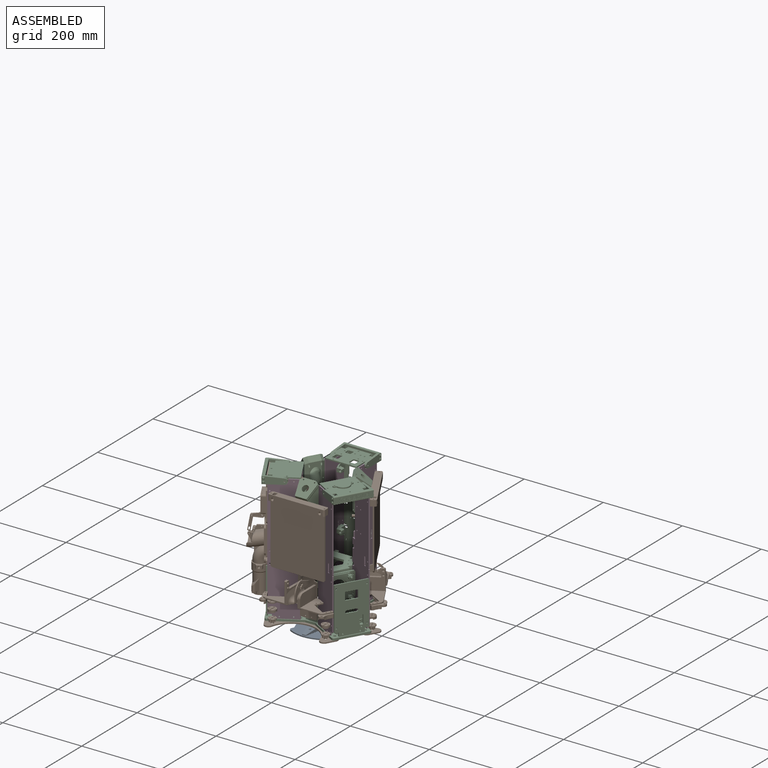
[diagram: assembled view]
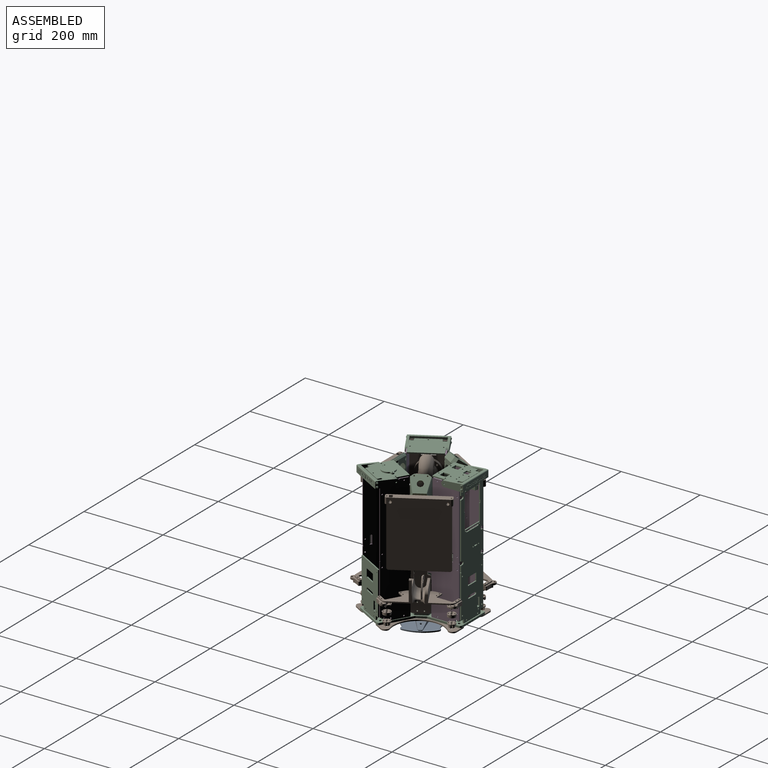
[diagram: assembled view, second angle]
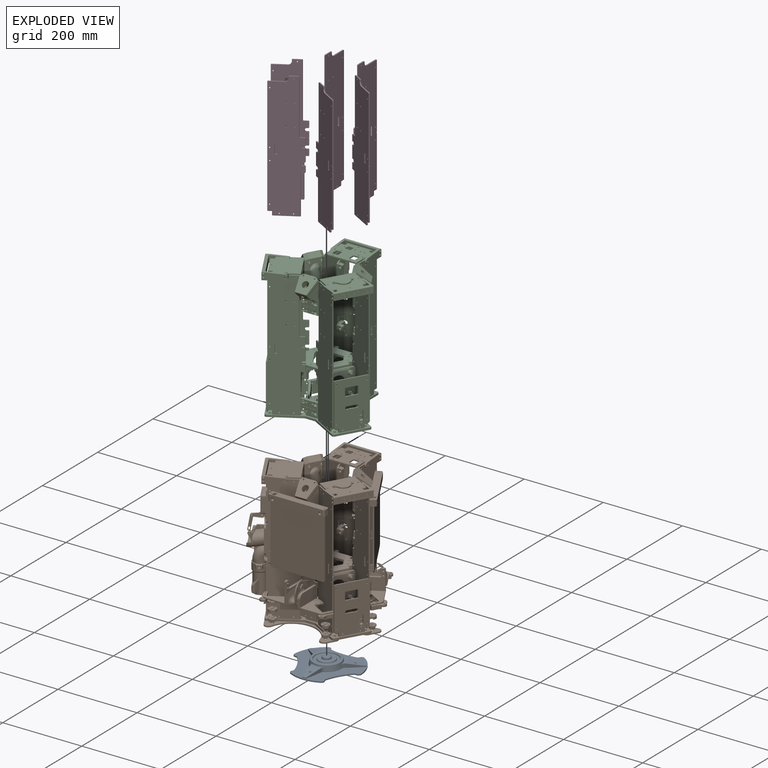
[diagram: exploded view]
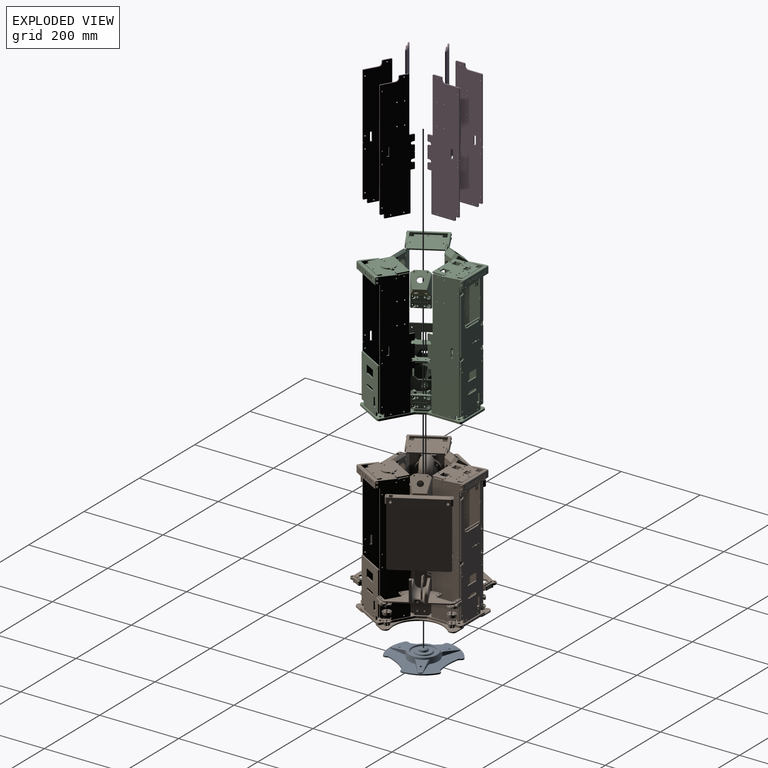
[diagram: exploded view, second angle]
FCSTD DOCUMENT  (FreeCAD 2023.131R26244 +5365 (Git))
Label: robots_2023
License: Creative Commons Attribution-NoDerivatives
LicenseURL: http://creativecommons.org/licenses/by-nd/4.0/
objects: App::Link×21, Part::Feature×11, App::Part×6, App::DocumentObjectGroup×3, Part::SubShapeBinder×1, Sketcher::SketchObject×1
note: 14 computed .brp shape members not serialized (recipe doc carries the construction recipe); baked Part::Feature solids carry a one-line shape summary decoded from their .brp
EXTERNAL_REF file=robot_holonome.FCStd obj=Part
EXTERNAL_REF file=mechanical-parts/colonne-moteur.FCStd obj=Body
EXTERNAL_REF file=mechanical-parts/colonne-moteur.FCStd obj=Body073
EXTERNAL_REF file=mechanical-parts/actuator.FCStd obj=Assembly
EXTERNAL_REF file=mechanical-parts/ball-actuator.FCStd obj=BallActionneur
EXTERNAL_REF file=mechanical-parts/structures.FCStd obj=Part013

FEATURE [App::Link] Link  label="RobotHolonome01"
  AutoLinkLabel = true
  AutoPlacement = true
  LinkedObject = -> <external robot_holonome.FCStd>#Part
  ShowElement = false
  SyncGroupVisibility = false
  TreeRank = 1
  _LinkVersion = 1
FEATURE [App::Link] Link001  label="RobotHolonome02"
  AutoLinkLabel = true
  AutoPlacement = true
  LinkedObject = -> <external robot_holonome.FCStd>#Part
  ShowElement = false
  SyncGroupVisibility = false
  TreeRank = 8
  _LinkVersion = 1
FEATURE [App::DocumentObjectGroup] Group003  label="Actionneurs02"
  ClaimAllChildren = true
  ExportMode = 1
  TreeRank = 12
  _GroupVersion = 1
FEATURE [App::Link] Link002  label="CarterSup"
  AutoLinkLabel = true
  AutoPlacement = true
  LinkPlacement = pos=(0,45,0) rot=(0,0,1;0rad)
  LinkedObject = -> <external mechanical-parts/colonne-moteur.FCStd>#Body
  Placement = pos=(0,45,0) rot=(0,0,1;0rad)
  ShowElement = false
  SyncGroupVisibility = false
  TreeRank = 21
  _LinkVersion = 1
FEATURE [App::Link] Link003  label="CarterSup001"
  AutoLinkLabel = true
  AutoPlacement = true
  LinkPlacement = pos=(38.9711,-22.5,0) rot=(0,0,1;4.18879rad)
  LinkedObject = -> <external mechanical-parts/colonne-moteur.FCStd>#Body
  Placement = pos=(38.9711,-22.5,0) rot=(0,0,1;4.18879rad)
  ShowElement = false
  SyncGroupVisibility = false
  TreeRank = 22
  _LinkVersion = 1
FEATURE [App::Link] Link004  label="CarterSup002"
  AutoLinkLabel = true
  AutoPlacement = true
  LinkPlacement = pos=(80.4712,49.3801,0) rot=(0,0,1;4.18879rad)
  LinkedObject = -> <external mechanical-parts/colonne-moteur.FCStd>#Body
  Placement = pos=(80.4712,49.3801,0) rot=(0,0,1;4.18879rad)
  ShowElement = false
  SyncGroupVisibility = false
  TreeRank = 23
  _LinkVersion = 1
FEATURE [App::Link] Link005  label="CarterSup003"
  AutoLinkLabel = true
  AutoPlacement = true
  LinkPlacement = pos=(2.52885,-94.3801,0) rot=(0,0,1;2.0944rad)
  LinkedObject = -> <external mechanical-parts/colonne-moteur.FCStd>#Body
  Placement = pos=(2.52885,-94.3801,0) rot=(0,0,1;2.0944rad)
  ShowElement = false
  SyncGroupVisibility = false
  TreeRank = 24
  _LinkVersion = 1
FEATURE [App::Link] Link006  label="CarterInf"
  AutoLinkLabel = true
  AutoPlacement = true
  LinkPlacement = pos=(0,45,0) rot=(0,0,1;0rad)
  LinkedObject = -> <external mechanical-parts/colonne-moteur.FCStd>#Body073
  Placement = pos=(0,45,0) rot=(0,0,1;0rad)
  ShowElement = false
  SyncGroupVisibility = false
  TreeRank = 27
  _LinkVersion = 1
FEATURE [App::Link] Link007  label="CarterInf001"
  AutoLinkLabel = true
  AutoPlacement = true
  LinkPlacement = pos=(38.9711,-22.5,0) rot=(0,0,1;4.18879rad)
  LinkedObject = -> <external mechanical-parts/colonne-moteur.FCStd>#Body073
  Placement = pos=(38.9711,-22.5,0) rot=(0,0,1;4.18879rad)
  ShowElement = false
  SyncGroupVisibility = false
  TreeRank = 28
  _LinkVersion = 1
FEATURE [App::Link] Link008  label="CarterInf002"
  AutoLinkLabel = true
  AutoPlacement = true
  LinkPlacement = pos=(2.52887,-94.3801,0) rot=(0,0,1;2.0944rad)
  LinkedObject = -> <external mechanical-parts/colonne-moteur.FCStd>#Body073
  Placement = pos=(2.52887,-94.3801,0) rot=(0,0,1;2.0944rad)
  ShowElement = false
  SyncGroupVisibility = false
  TreeRank = 29
  _LinkVersion = 1
FEATURE [App::Link] Link009  label="CarterInf003"
  AutoLinkLabel = true
  AutoPlacement = true
  LinkPlacement = pos=(80.4712,49.3801,0) rot=(0,0,1;4.18879rad)
  LinkedObject = -> <external mechanical-parts/colonne-moteur.FCStd>#Body073
  Placement = pos=(80.4712,49.3801,0) rot=(0,0,1;4.18879rad)
  ShowElement = false
  SyncGroupVisibility = false
  TreeRank = 30
  _LinkVersion = 1
FEATURE [App::Link] Link010  label="CarterInf004"
  AutoLinkLabel = true
  AutoPlacement = true
  LinkPlacement = pos=(-38.9711,-22.5,4.76834e-07) rot=(0,0,1;2.0944rad)
  LinkedObject = -> Link008
  Placement = pos=(-38.9711,-22.5,4.76834e-07) rot=(0,0,1;2.0944rad)
  ShowElement = false
  SyncGroupVisibility = false
  TreeRank = 31
  _LinkVersion = 1
FEATURE [App::Link] Link011  label="CarterInf005"
  AutoLinkLabel = true
  AutoPlacement = true
  LinkPlacement = pos=(-83,45,1.42966e-05) rot=(0,0,1;0rad)
  LinkedObject = -> Link006
  Placement = pos=(-83,45,1.42966e-05) rot=(0,0,1;0rad)
  ShowElement = false
  SyncGroupVisibility = false
  TreeRank = 32
  _LinkVersion = 1
FEATURE [App::Link] Link012  label="CarterSup004"
  AutoLinkLabel = true
  AutoPlacement = true
  LinkPlacement = pos=(-38.9711,-22.5,4.76833e-07) rot=(0,0,1;2.0944rad)
  LinkedObject = -> Link005
  Placement = pos=(-38.9711,-22.5,4.76833e-07) rot=(0,0,1;2.0944rad)
  ShowElement = false
  SyncGroupVisibility = false
  TreeRank = 25
  _LinkVersion = 1
FEATURE [App::Link] Link013  label="CarterSup005"
  AutoLinkLabel = true
  AutoPlacement = true
  LinkPlacement = pos=(-83,45,1.42966e-05) rot=(0,0,1;0rad)
  LinkedObject = -> Link002
  Placement = pos=(-83,45,1.42966e-05) rot=(0,0,1;0rad)
  ShowElement = false
  SyncGroupVisibility = false
  TreeRank = 26
  _LinkVersion = 1
FEATURE [App::Part] Part002  label="Carters"
  ClaimAllChildren = false
  ExportMode = 1
  Group = -> [Link002,Link003,Link004,Link005,Link012,Link013,Link006,Link007,Link008,Link009,Link010,Link011]
  Origin = -> Origin002
  TreeRank = 35
  _ExportChildren = -> [Link002,Link003,Link004,Link005,Link012,Link013,Link006,Link007,Link008,Link009,Link010,Link011]
  _GroupVersion = 1
FEATURE [App::DocumentObjectGroup] Group005  label="Parts"
  ClaimAllChildren = true
  ExportMode = 1
  Group = -> [Part002]
  TreeRank = 37
  _GroupVersion = 1
FEATURE [App::Link] Link014  label="Carters01"
  AutoLinkLabel = true
  AutoPlacement = true
  LinkedObject = -> Part002
  ShowElement = false
  SyncGroupVisibility = false
  TreeRank = 38
  _LinkVersion = 1
FEATURE [App::Link] Link015  label="Carters02"
  AutoLinkLabel = true
  AutoPlacement = true
  LinkedObject = -> Part002
  ShowElement = false
  SyncGroupVisibility = false
  TreeRank = 39
  _LinkVersion = 1
FEATURE [App::Part] Part001  label="Dary"
  ClaimAllChildren = false
  ExportMode = 1
  Group = -> [Link001,Group003,Link015]
  Origin = -> Origin001
  TreeRank = 7
  _ExportChildren = -> [Link001,Group003,Link015]
  _GroupVersion = 1
FEATURE [App::Link] Link016  label="Link016(AssembledActuator)"
  AutoLinkLabel = true
  AutoPlacement = true
  LinkedObject = -> <external mechanical-parts/actuator.FCStd>#Assembly
  ShowElement = false
  SyncGroupVisibility = false
  TreeRank = 40
  _LinkVersion = 1
FEATURE [App::Link] Link018  label="Link018(*AssembledActuator)"
  AutoLinkLabel = true
  AutoPlacement = true
  LinkPlacement = pos=(0,0,0) rot=(0,0,1;4.18879rad)
  LinkedObject = -> Link016
  Placement = pos=(0,0,0) rot=(0,0,1;4.18879rad)
  ShowElement = false
  SyncGroupVisibility = false
  TreeRank = 66
  _LinkVersion = 1
FEATURE [App::Link] Link019  label="Link019(*AssembledActuator)"
  AutoLinkLabel = true
  AutoPlacement = true
  LinkPlacement = pos=(0,0,0) rot=(0,0,1;2.0944rad)
  LinkedObject = -> Link016
  Placement = pos=(0,0,0) rot=(0,0,1;2.0944rad)
  ShowElement = false
  SyncGroupVisibility = false
  TreeRank = 67
  _LinkVersion = 1
FEATURE [Part::Feature] Part__Feature  label="CarterVac"
  InvalidShape = false
  TreeRank = 91
  ValidateShape = true
  shape: bbox 80 x 3 x 200 mm, 74 faces (baked)
FEATURE [Part::Feature] Part__Feature001  label="TubeInterne"
  InvalidShape = false
  TreeRank = 92
  ValidateShape = true
  shape: bbox 61.94 x 98.3 x 192.5 mm, 124 faces (baked)
FEATURE [Part::Feature] Part__Feature002  label="TubeExterne"
  InvalidShape = false
  TreeRank = 93
  ValidateShape = true
  shape: bbox 60.03 x 49.48 x 124.4 mm, 102 faces (baked)
FEATURE [Part::Feature] Part__Feature003  label="TubeEntree"
  InvalidShape = false
  TreeRank = 94
  ValidateShape = true
  shape: bbox 46.24 x 35.58 x 86.23 mm, 62 faces (baked)
FEATURE [Part::Feature] Part__Feature004  label="SpacerTurbine"
  InvalidShape = false
  TreeRank = 95
  ValidateShape = true
  shape: bbox 45 x 10 x 45 mm, 41 faces (baked)
FEATURE [Part::Feature] Part__Feature005  label="CacheTurbine"
  InvalidShape = false
  TreeRank = 96
  ValidateShape = true
  shape: bbox 45 x 3 x 45 mm, 30 faces (baked)
FEATURE [Part::Feature] Part__Feature006  label="LamelleTurbine"
  InvalidShape = false
  TreeRank = 97
  ValidateShape = true
  shape: bbox 50 x 4.8 x 2.1 mm, 10 faces (baked)
FEATURE [Part::Feature] Part__Feature007  label="Trappe"
  InvalidShape = false
  Placement = pos=(0,28.35,194.28) rot=(0,0,1;0rad)
  TreeRank = 98
  ValidateShape = true
  shape: bbox 60.05 x 16.85 x 35.16 mm, 48 faces (baked)
FEATURE [Part::Feature] Part__Feature008  label="ServoArm"
  InvalidShape = false
  TreeRank = 99
  ValidateShape = true
  shape: bbox 4 x 21.5 x 6.9 mm, 11 faces (baked)
FEATURE [Part::Feature] Part__Feature009  label="BigServoArm"
  InvalidShape = false
  TreeRank = 100
  ValidateShape = true
  shape: bbox 4 x 30.59 x 10.9 mm, 28 faces (baked)
FEATURE [Part::Feature] Part__Feature010  label="ArmLink"
  InvalidShape = false
  Placement = pos=(5.3e-15,21.65,6.0174e-12) rot=(-1,0,0;1.39626rad)
  TreeRank = 101
  ValidateShape = true
  shape: bbox 3 x 12.56 x 38.51 mm, 11 faces (baked)
FEATURE [App::Part] EnsembleServoArm
  ClaimAllChildren = false
  ExportMode = 1
  Group = -> [Part__Feature008,Part__Feature009,Part__Feature010]
  Origin = -> Origin003
  Placement = pos=(15.7,12.1227,220.996) rot=(0,0,1;0rad)
  TreeRank = 103
  _ExportChildren = -> [Part__Feature008,Part__Feature009,Part__Feature010]
  _GroupVersion = 1
FEATURE [App::Part] EnsembleServo
  ClaimAllChildren = false
  ExportMode = 1
  Group = -> [EnsembleServoArm]
  Origin = -> Origin004
  Placement = pos=(-7.4,-2.86102e-07,-2.84e-14) rot=(0,0,1;0rad)
  TreeRank = 105
  _ExportChildren = -> [EnsembleServoArm]
  _GroupVersion = 1
FEATURE [App::Part] BallActionneur
  ClaimAllChildren = false
  ExportMode = 1
  Group = -> [Part__Feature,Part__Feature001,Part__Feature002,Part__Feature003,Part__Feature004,Part__Feature005,Part__Feature006,Part__Feature007,EnsembleServo]
  Origin = -> Origin005
  Placement = pos=(-106.521,-61.5,-10) rot=(0,0,1;2.0944rad)
  TreeRank = 107
  _ExportChildren = -> [Part__Feature,Part__Feature001,Part__Feature002,Part__Feature003,Part__Feature004,Part__Feature005,Part__Feature006,Part__Feature007,EnsembleServo]
  _GroupVersion = 1
FEATURE [Part::SubShapeBinder] Import  label="Import(Fillet008)"
  BindCopyOnChange = 0
  BindMode = 0
  ClaimChildren = false
  EdgeTolerance = 1e-06
  FillStyle = 0
  Fuse = false
  InvalidShape = false
  MakeFace = false
  MergeEdges = true
  OffsetFill = false
  OffsetIntersection = false
  OffsetJoinType = 0
  OffsetOpenResult = false
  Outline = false
  PartialLoad = false
  Relative = true
  SplitEdges = false
  Support = -> [Part[Link016.Part003.Part004.Body044.Fillet008.]]
  TightBound = false
  TreeRank = 133
  ValidateShape = true
  _Version = 8
FEATURE [Sketcher::SketchObject] Sketch
  ArcFitTolerance = 1e-06
  ExternalBSplineMaxDegree = 5
  ExternalBSplineTolerance = 0.0001
  ExternalGeometry = -> [Import]
  FullyConstrained = false
  InternalTolerance = 1e-06
  InvalidShape = false
  MakeInternals = true
  TreeRank = 132
  ValidateShape = true
  sketch-geometry (4):
    g0: LineSegment StartX=0 StartY=-134.06 StartZ=0 EndX=-90.6094 EndY=-134.06 EndZ=0
    g1: LineSegment StartX=-86.0526 StartY=136.28 StartZ=0 EndX=102.499 EndY=136.28 EndZ=0
    g2: LineSegment StartX=-154.715 StartY=-46.0465 StartZ=0 EndX=-98.0532 EndY=-144.187 EndZ=0
    g3: LineSegment StartX=-135.975 StartY=-78.505 StartZ=0 EndX=2.274e-13 EndY=1.705e-13 EndZ=0
  constraints (11):
    c: PointOnObject(g0,g-2)
    c: Horizontal(g0)
    c: Horizontal(g1)
    c: DistanceY(g1) = 136.28
    c: DistanceY(g0) = -134.06
    c: DistanceY(g-3,g-1) = 124.49
    c: Angle(g2,g-1) = 1.0472
    c: PointOnObject(g3,g2)
    c: Coincident(g3,g-1)
    c: Perpendicular(g2,g3)
    c: Distance(g3) = 157.01
FEATURE [App::Link] Link020  label="BallActionneur001"
  AutoLinkLabel = true
  AutoPlacement = true
  LinkPlacement = pos=(-106.521,-61.5,-10) rot=(0,0,1;2.0944rad)
  LinkedObject = -> <external mechanical-parts/ball-actuator.FCStd>#BallActionneur
  Placement = pos=(-106.521,-61.5,-10) rot=(0,0,1;2.0944rad)
  SyncGroupVisibility = false
  TreeRank = 134
  _LinkVersion = 1
FEATURE [App::DocumentObjectGroup] Group002  label="Actionneurs01"
  ClaimAllChildren = true
  ExportMode = 1
  Group = -> [Link016,Link018,Link019,BallActionneur,Link020]
  TreeRank = 11
  _GroupVersion = 1
FEATURE [App::Part] Part  label="Mary"
  ClaimAllChildren = false
  ExportMode = 1
  Group = -> [Link,Group002,Link014,Link016,Link018,Link019,BallActionneur,Link020]
  Origin = -> Origin
  TreeRank = 4
  _ExportChildren = -> [Link,Group002,Link014]
  _GroupVersion = 1
FEATURE [App::Link] Link021  label="RobotStand"
  AutoLinkLabel = true
  AutoPlacement = true
  LinkPlacement = pos=(0,1.19209e-06,-2) rot=(1,0,0;3.14159rad)
  LinkedObject = -> <external mechanical-parts/structures.FCStd>#Part013
  Placement = pos=(0,1.19209e-06,-2) rot=(1,0,0;3.14159rad)
  SyncGroupVisibility = false
  TreeRank = 135
  _LinkVersion = 1

RESOLVED EXTERNAL PARTS (link-assembly join: the EXTERNAL_REF files above that resolve inside this repo's crawl, each included once):
---- part mechanical-parts/actuator.FCStd = doc fcstd_988ee5c55d43 (154555 chars; too large to inline — full recipe in that document) ----
---- part mechanical-parts/ball-actuator.FCStd = doc fcstd_b463ab52f73f ----
FCSTD DOCUMENT  (FreeCAD 2023.131R26244 +5365 (Git))
Label: ball-actuator
License: Creative Commons Attribution-NoDerivatives
LicenseURL: http://creativecommons.org/licenses/by-nd/4.0/
objects: Part::Feature×11, PartDesign::Chamfer×6, Sketcher::SketchObject×5, App::Part×3, PartDesign::Pocket×3, PartDesign::Draft×3, PartDesign::Pad×2, PartDesign::Fillet×2, PartDesign::SubShapeBinder×1, PartDesign::Mirrored×1, PartDesign::Body×1
note: 74 computed .brp shape members not serialized (recipe doc carries the construction recipe); baked Part::Feature solids carry a one-line shape summary decoded from their .brp

FEATURE [Part::Feature] Part__Feature  label="CarterVac"
  InvalidShape = false
  TreeRank = 91
  ValidateShape = true
  shape: bbox 80 x 3 x 200 mm, 74 faces (baked)
FEATURE [Part::Feature] Part__Feature001  label="TubeInterne"
  InvalidShape = false
  TreeRank = 92
  ValidateShape = true
  shape: bbox 61.94 x 98.3 x 192.5 mm, 124 faces (baked)
FEATURE [Part::Feature] Part__Feature002  label="TubeExterne"
  InvalidShape = false
  TreeRank = 93
  ValidateShape = true
  shape: bbox 60.03 x 49.48 x 124.4 mm, 102 faces (baked)
FEATURE [Part::Feature] Part__Feature003  label="TubeEntree"
  InvalidShape = false
  TreeRank = 94
  ValidateShape = true
  shape: bbox 46.24 x 35.58 x 86.23 mm, 62 faces (baked)
FEATURE [Part::Feature] Part__Feature004  label="SpacerTurbine"
  InvalidShape = false
  TreeRank = 95
  ValidateShape = true
  shape: bbox 45 x 10 x 45 mm, 41 faces (baked)
FEATURE [Part::Feature] Part__Feature005  label="CacheTurbine"
  InvalidShape = false
  TreeRank = 96
  ValidateShape = true
  shape: bbox 45 x 3 x 45 mm, 30 faces (baked)
FEATURE [Part::Feature] Part__Feature006  label="LamelleTurbine"
  InvalidShape = false
  TreeRank = 97
  ValidateShape = true
  shape: bbox 50 x 4.8 x 2.1 mm, 10 faces (baked)
FEATURE [Part::Feature] Part__Feature007  label="Trappe"
  InvalidShape = false
  Placement = pos=(0,28.35,194.28) rot=(0,0,1;0rad)
  TreeRank = 98
  ValidateShape = true
  shape: bbox 60.05 x 16.85 x 35.16 mm, 48 faces (baked)
FEATURE [Part::Feature] Part__Feature008  label="ServoArm"
  InvalidShape = false
  TreeRank = 99
  ValidateShape = true
  shape: bbox 4 x 21.5 x 6.9 mm, 11 faces (baked)
FEATURE [Part::Feature] Part__Feature009  label="BigServoArm"
  InvalidShape = false
  TreeRank = 100
  ValidateShape = true
  shape: bbox 4 x 30.59 x 10.9 mm, 28 faces (baked)
FEATURE [Part::Feature] Part__Feature010  label="ArmLink"
  InvalidShape = false
  Placement = pos=(5.3e-15,21.65,6.0174e-12) rot=(-1,0,0;1.39626rad)
  TreeRank = 101
  ValidateShape = true
  shape: bbox 3 x 12.56 x 38.51 mm, 11 faces (baked)
FEATURE [App::Part] EnsembleServoArm
  ClaimAllChildren = false
  ExportMode = 1
  Group = -> [Part__Feature008,Part__Feature009,Part__Feature010]
  Origin = -> Origin003
  Placement = pos=(15.7,12.1227,220.996) rot=(0,0,1;0rad)
  TreeRank = 103
  _ExportChildren = -> [Part__Feature008,Part__Feature009,Part__Feature010]
  _GroupVersion = 1
FEATURE [App::Part] EnsembleServo
  ClaimAllChildren = false
  ExportMode = 1
  Group = -> [EnsembleServoArm]
  Origin = -> Origin004
  Placement = pos=(-7.4,-2.86102e-07,-2.84e-14) rot=(0,0,1;0rad)
  TreeRank = 105
  _ExportChildren = -> [EnsembleServoArm]
  _GroupVersion = 1
FEATURE [PartDesign::SubShapeBinder] BaseFeature  label="BaseFeature(TubeEntree)"
  BindCopyOnChange = 0
  BindMode = 0
  ClaimChildren = false
  Context = -> BallActionneur [Body.BaseFeature.]
  EdgeTolerance = 1e-06
  FillStyle = 0
  Fuse = true
  InvalidShape = false
  MakeFace = true
  MergeEdges = true
  OffsetFill = false
  OffsetIntersection = false
  OffsetJoinType = 0
  OffsetOpenResult = false
  Outline = false
  PartialLoad = false
  Relative = true
  SplitEdges = false
  Support = -> [Part__Feature003]
  TightBound = false
  TreeRank = 143
  ValidateShape = true
  _Version = 8
FEATURE [Sketcher::SketchObject] Sketch
  ArcFitTolerance = 1e-06
  AttachmentSupport = -> [YZ_Plane]
  ExternalBSplineMaxDegree = 5
  ExternalBSplineTolerance = 0.0001
  ExternalGeometry = -> [BaseFeature]
  FullyConstrained = true
  InternalTolerance = 1e-06
  InvalidShape = false
  MakeInternals = true
  MapMode = 5
  Placement = pos=(0,0,0) rot=(0.57735,0.57735,0.57735;2.0944rad)
  Support = -> [YZ_Plane]
  TreeRank = 144
  ValidateShape = true
  sketch-geometry (8):
    g0: LineSegment [constr] StartX=-1.4508e-12 StartY=52.5 StartZ=0 EndX=33 EndY=52.5 EndZ=0
    g1: LineSegment StartX=33 StartY=52.5 StartZ=0 EndX=33 EndY=22.5 EndZ=0
    g2: LineSegment StartX=33 StartY=22.5 StartZ=0 EndX=-1.4495e-12 EndY=22.5 EndZ=0
    g3: LineSegment [constr] StartX=-1.4508e-12 StartY=22.5 StartZ=0 EndX=-1.4508e-12 EndY=52.5 EndZ=0
    g4: LineSegment StartX=33 StartY=52.5 StartZ=0 EndX=19 EndY=52.5 EndZ=0
    g5: ArcOfCircle CenterX=19 CenterY=36 CenterZ=0 NormalX=0 NormalY=0 NormalZ=1 AngleXU=0 Radius=16.5 StartAngle=1.5708 EndAngle=3.14159
    g6: LineSegment StartX=2.5 StartY=36 StartZ=0 EndX=8.966e-13 EndY=36 EndZ=0
    g7: LineSegment StartX=8.966e-13 StartY=36 StartZ=0 EndX=-1.4508e-12 EndY=22.5 EndZ=0
  constraints (22):
    c: Coincident(g0,g1)
    c: Coincident(g1,g2)
    c: Coincident(g2,g3)
    c: Coincident(g3,g0)
    c: Horizontal(g0)
    c: Horizontal(g2)
    c: Vertical(g1)
    c: Vertical(g3)
    c: PointOnObject(g0,g-2)
    c: DistanceY(g-1,g0) = 52.5
    c: DistanceX(g1) = 33
    c: DistanceY(g1,g1) = 30
    c: Coincident(g4,g1)
    c: PointOnObject(g4,g0)
    c: Tangent(g5,g4) = -1.5708
    c: Coincident(g6,g5)
    c: PointOnObject(g6,g3)
    c: Coincident(g7,g6)
    c: Coincident(g7,g2)
    c: Horizontal(g6)
    c: Perpendicular(g5,g6)
    c: Coincident(g-3,g5)
FEATURE [PartDesign::Pocket] Pocket
  AddSubType = 1
  AutoTaperInnerAngle = true
  BaseFeature = -> BaseFeature
  CheckUpToFaceLimits = true
  ClaimChildren = false
  Fit = 0
  FitJoin = 0
  InnerFit = 0
  InnerFitJoin = 0
  InvalidShape = false
  Length = 5
  Length2 = 100
  Linearize = true
  Midplane = true
  NewSolid = false
  Profile = -> Sketch
  Refine = true
  Suppress = false
  TaperInnerAngle = 0
  TaperInnerAngleRev = 0
  TreeRank = 145
  Type = 1
  ValidateShape = true
  _ProfileBasedVersion = 1
  _Version = 1
FEATURE [Sketcher::SketchObject] Sketch001
  ArcFitTolerance = 1e-06
  AttachmentSupport = -> [Pocket]
  ExternalBSplineMaxDegree = 5
  ExternalBSplineTolerance = 0.0001
  ExternalGeometry = -> [Pocket]
  FullyConstrained = true
  InternalTolerance = 1e-06
  InvalidShape = false
  MakeInternals = true
  MapMode = 5
  Placement = pos=(-1.46e-14,-4.4648e-12,52.5) rot=(1,0,0;3.14159rad)
  Support = -> [Pocket]
  TreeRank = 146
  ValidateShape = true
  sketch-geometry (8):
    g0: LineSegment StartX=-15 StartY=-16 StartZ=0 EndX=-16 EndY=-16 EndZ=0
    g1: LineSegment StartX=-16 StartY=-16 StartZ=0 EndX=-16 EndY=-32 EndZ=0
    g2: LineSegment StartX=-16 StartY=-32 StartZ=0 EndX=16 EndY=-32 EndZ=0
    g3: LineSegment StartX=16 StartY=-32 StartZ=0 EndX=16 EndY=-16 EndZ=0
    g4: ArcOfCircle CenterX=4.3402e-12 CenterY=-16 CenterZ=0 NormalX=0 NormalY=0 NormalZ=1 AngleXU=0 Radius=14 StartAngle=3.14159 EndAngle=6.28319
    g5: LineSegment StartX=14 StartY=-16 StartZ=0 EndX=16 EndY=-16 EndZ=0
    g6: LineSegment StartX=-15 StartY=-16 StartZ=0 EndX=-14 EndY=-16 EndZ=0
    g7: GeomPoint [constr] X=0 Y=-31.5 Z=0
  constraints (22):
    c: Horizontal(g0)
    c: Coincident(g1,g0)
    c: Vertical(g1)
    c: Coincident(g2,g1)
    c: Horizontal(g2)
    c: Coincident(g3,g2)
    c: Vertical(g3)
    c: Symmetric(g3,g0,g-2)
    c: Coincident(g5,g4)
    c: Horizontal(g5)
    c: Coincident(g6,g0)
    c: Coincident(g6,g4)
    c: Horizontal(g6)
    c: DistanceX(g6,g6) = 1
    c: Coincident(g5,g3)
    c: PointOnObject(g7,g-2)
    c: DistanceY(g2,g7) = 0.5
    c: Horizontal(g4,g4)
    c: PointOnObject(g7,g-3)
    c: Coincident(g-3,g4)
    c: DistanceX(g5,g5) = 2
    c: DistanceX(g0,g3) = 32
FEATURE [PartDesign::Pad] Pad
  AddSubType = 0
  AlongSketchNormal = false
  AutoTaperInnerAngle = true
  BaseFeature = -> Pocket
  CheckUpToFaceLimits = true
  ClaimChildren = false
  Direction = (3e-16,8.5e-14,-1)
  Fit = 0
  FitJoin = 0
  InnerFit = 0
  InnerFitJoin = 0
  InvalidShape = false
  Length = 20
  Length2 = 100
  Linearize = true
  NewSolid = false
  Profile = -> Sketch001
  Refine = true
  Reversed = true
  Suppress = false
  TaperInnerAngle = 0
  TaperInnerAngleRev = 0
  TreeRank = 147
  Type = 0
  ValidateShape = true
  _ProfileBasedVersion = 1
FEATURE [PartDesign::Draft] Draft
  AddSubType = 0
  Angle = 45
  Base = -> Pad [Face63]
  BaseFeature = -> Pad
  InvalidShape = false
  NeutralPlane = -> Pad [Face69]
  NewSolid = false
  Refine = true
  SupportTransform = false
  Suppress = false
  TreeRank = 148
  ValidateShape = true
FEATURE [PartDesign::Draft] Draft001
  AddSubType = 0
  Angle = 45
  Base = -> Draft [Face70]
  BaseFeature = -> Draft
  InvalidShape = false
  NeutralPlane = -> Draft [Face64]
  NewSolid = false
  Refine = true
  Reversed = true
  SupportTransform = false
  Suppress = false
  TreeRank = 149
  ValidateShape = true
FEATURE [PartDesign::Draft] Draft002
  AddSubType = 0
  Angle = 45
  Base = -> Draft001 [Face68]
  BaseFeature = -> Draft001
  InvalidShape = false
  NeutralPlane = -> Draft001 [Face62]
  NewSolid = false
  Refine = true
  SupportTransform = false
  Suppress = false
  TreeRank = 150
  ValidateShape = true
FEATURE [PartDesign::Fillet] Fillet
  AddSubType = 0
  Base = -> Draft002 [Edge183,Edge182]
  BaseFeature = -> Draft002
  InvalidShape = false
  NewSolid = false
  Radius = 5
  Refine = true
  SupportTransform = false
  Suppress = false
  TreeRank = 151
  ValidateShape = true
FEATURE [Sketcher::SketchObject] Sketch002
  ArcFitTolerance = 1e-06
  AttachmentSupport = -> [Fillet]
  ExternalBSplineMaxDegree = 5
  ExternalBSplineTolerance = 0.0001
  FullyConstrained = false
  InternalTolerance = 1e-06
  InvalidShape = false
  MakeInternals = true
  MapMode = 5
  Placement = pos=(-1.68e-14,-4.404e-12,52.5) rot=(1,0,0;3.14159rad)
  Support = -> [Fillet]
  TreeRank = 152
  ValidateShape = true
  sketch-geometry (3):
    g0: Circle [constr] CenterX=19.9289 CenterY=-27 CenterZ=0 NormalX=0 NormalY=0 NormalZ=1 AngleXU=0 Radius=6.5
    g1: Circle CenterX=19.9289 CenterY=-27 CenterZ=0 NormalX=0 NormalY=0 NormalZ=1 AngleXU=0 Radius=2.2
    g2: LineSegment [constr] StartX=17.8579 StartY=-32 StartZ=0 EndX=22 EndY=-22 EndZ=0
  constraints (4):
    c: Diameter(g0) = 13
    c: Coincident(g1,g0)
    c: Diameter(g1) = 4.4
    c: Symmetric(g2,g2,g1)
FEATURE [PartDesign::Pocket] Pocket001
  AddSubType = 1
  AutoTaperInnerAngle = true
  BaseFeature = -> Fillet
  CheckUpToFaceLimits = true
  ClaimChildren = false
  Fit = 0
  FitJoin = 0
  InnerFit = 0
  InnerFitJoin = 0
  InvalidShape = false
  Length = 20
  Length2 = 100
  Linearize = true
  NewSolid = false
  Profile = -> Sketch002
  Refine = true
  Suppress = false
  TaperInnerAngle = 0
  TaperInnerAngleRev = 0
  TreeRank = 153
  Type = 0
  ValidateShape = true
  _ProfileBasedVersion = 1
  _Version = 1
FEATURE [Sketcher::SketchObject] Sketch003
  ArcFitTolerance = 1e-06
  AttachmentSupport = -> [Pocket001]
  ExternalBSplineMaxDegree = 5
  ExternalBSplineTolerance = 0.0001
  ExternalGeometry = -> [Pocket001]
  FullyConstrained = true
  InternalTolerance = 1e-06
  InvalidShape = false
  MakeInternals = true
  MapMode = 5
  Placement = pos=(-1.68e-14,-4.404e-12,52.5) rot=(1,0,0;3.14159rad)
  Support = -> [Pocket001]
  TreeRank = 154
  ValidateShape = true
  sketch-geometry (1):
    g0: Circle CenterX=19.9289 CenterY=-27 CenterZ=0 NormalX=0 NormalY=0 NormalZ=1 AngleXU=0 Radius=7
  constraints (2):
    c: Diameter(g0) = 14
    c: Coincident(g0,g-3)
FEATURE [PartDesign::Pocket] Pocket002
  AddSubType = 1
  AutoTaperInnerAngle = true
  BaseFeature = -> Pocket001
  CheckUpToFaceLimits = true
  ClaimChildren = false
  Fit = 0
  FitJoin = 0
  InnerFit = 0
  InnerFitJoin = 0
  InvalidShape = false
  Length = 7
  Length2 = 100
  Linearize = true
  NewSolid = false
  Profile = -> Sketch003
  Refine = true
  Suppress = false
  TaperInnerAngle = 0
  TaperInnerAngleRev = 0
  TreeRank = 155
  Type = 0
  ValidateShape = true
  _ProfileBasedVersion = 1
  _Version = 1
FEATURE [PartDesign::Mirrored] Mirrored
  AddSubType = 0
  BaseFeature = -> Pocket002
  CopyShape = false
  InvalidShape = false
  MirrorPlane = -> Sketch002 [V_Axis]
  NewSolid = false
  OriginalSubs = -> [Pocket001,Pocket002]
  Originals = -> [Pocket001,Pocket002]
  ParallelTransform = true
  Refine = true
  SubTransform = true
  Suppress = false
  TreeRank = 156
  ValidateShape = true
  _Version = 3
FEATURE [PartDesign::Fillet] Fillet001
  AddSubType = 0
  Base = -> Mirrored [Edge19,Edge40,Edge23,Edge10]
  BaseFeature = -> Mirrored
  InvalidShape = false
  NewSolid = false
  Radius = 2
  Refine = true
  SupportTransform = false
  Suppress = false
  TreeRank = 157
  ValidateShape = true
FEATURE [PartDesign::Chamfer] Chamfer
  AddSubType = 0
  Angle = 45
  Base = -> Fillet001 [Edge78,Edge32]
  BaseFeature = -> Fillet001
  ChamferType = 0
  FlipDirection = false
  InvalidShape = false
  NewSolid = false
  Refine = true
  Size = 0.5
  Size2 = 1
  SupportTransform = false
  Suppress = false
  TreeRank = 158
  ValidateShape = true
FEATURE [PartDesign::Chamfer] Chamfer001
  AddSubType = 0
  Angle = 45
  Base = -> Chamfer [Edge21]
  BaseFeature = -> Chamfer
  ChamferType = 0
  FlipDirection = false
  InvalidShape = false
  NewSolid = false
  Refine = true
  Size = 0.4
  Size2 = 1
  SupportTransform = false
  Suppress = false
  TreeRank = 159
  ValidateShape = true
FEATURE [PartDesign::Chamfer] Chamfer002
  AddSubType = 0
  Angle = 45
  Base = -> Chamfer001 [Edge94,Edge29]
  BaseFeature = -> Chamfer001
  ChamferType = 0
  FlipDirection = false
  InvalidShape = false
  NewSolid = false
  Refine = true
  Size = 0.4
  Size2 = 1
  SupportTransform = false
  Suppress = false
  TreeRank = 160
  ValidateShape = true
FEATURE [Sketcher::SketchObject] Sketch004
  ArcFitTolerance = 1e-06
  AttachmentSupport = -> [Chamfer002]
  ExternalBSplineMaxDegree = 5
  ExternalBSplineTolerance = 0.0001
  ExternalGeometry = -> [Chamfer002]
  FullyConstrained = true
  InternalTolerance = 1e-06
  InvalidShape = false
  MakeInternals = true
  MapMode = 5
  Placement = pos=(-1.68e-14,-4.404e-12,52.5) rot=(1,0,0;3.14159rad)
  Support = -> [Chamfer002]
  TreeRank = 161
  ValidateShape = true
  sketch-geometry (2):
    g0: Circle CenterX=9.2e-15 CenterY=-16 CenterZ=0 NormalX=0 NormalY=0 NormalZ=1 AngleXU=0 Radius=12
    g1: Circle CenterX=9.2e-15 CenterY=-16 CenterZ=0 NormalX=0 NormalY=0 NormalZ=1 AngleXU=0 Radius=14
  constraints (4):
    c: Coincident(g0,g-3)
    c: Diameter(g0) = 24
    c: Coincident(g1,g0)
    c: Diameter(g1) = 28
FEATURE [PartDesign::Pad] Pad001
  AddSubType = 0
  AlongSketchNormal = false
  AutoTaperInnerAngle = true
  BaseFeature = -> Chamfer002
  CheckUpToFaceLimits = true
  ClaimChildren = false
  Direction = (3e-16,8.39e-14,-1)
  Fit = 0
  FitJoin = 0
  InnerFit = 0
  InnerFitJoin = 0
  InvalidShape = false
  Length = 20
  Length2 = 100
  Linearize = true
  NewSolid = false
  Profile = -> Sketch004
  Refine = true
  Reversed = true
  Suppress = false
  TaperInnerAngle = 0
  TaperInnerAngleRev = 0
  TreeRank = 162
  Type = 0
  ValidateShape = true
  _ProfileBasedVersion = 1
FEATURE [PartDesign::Chamfer] Chamfer003
  AddSubType = 0
  Angle = 45
  Base = -> Pad001 [Edge4]
  BaseFeature = -> Pad001
  ChamferType = 1
  FlipDirection = false
  InvalidShape = false
  NewSolid = false
  Refine = true
  Size = 1.4
  Size2 = 5
  SupportTransform = false
  Suppress = false
  TreeRank = 163
  ValidateShape = true
FEATURE [PartDesign::Chamfer] Chamfer004
  AddSubType = 0
  Angle = 45
  Base = -> Chamfer003 [Edge6]
  BaseFeature = -> Chamfer003
  ChamferType = 0
  FlipDirection = false
  InvalidShape = false
  NewSolid = false
  Refine = true
  Size = 1.4
  Size2 = 1
  SupportTransform = false
  Suppress = false
  TreeRank = 164
  ValidateShape = true
FEATURE [PartDesign::Chamfer] Chamfer005
  AddSubType = 0
  Angle = 45
  Base = -> Chamfer004 [Edge81]
  BaseFeature = -> Chamfer004
  ChamferType = 0
  FlipDirection = false
  InvalidShape = false
  NewSolid = false
  Refine = true
  Size = 1.9
  Size2 = 1
  SupportTransform = false
  Suppress = false
  TreeRank = 165
  ValidateShape = true
FEATURE [PartDesign::Body] Body  label="TubeEntree2"
  AutoGroupSolids = false
  BaseFeature = -> BaseFeature
  ClaimAllChildren = false
  ExportMode = 0
  FixShape = 1
  Group = -> [BaseFeature,Sketch,Pocket,Sketch001,Pad,Draft,Draft001,Draft002,Fillet,Sketch002,Pocket001,Sketch003,Pocket002,Mirrored,Fillet001,Chamfer,Chamfer001,Chamfer002,Sketch004,Pad001,Chamfer003,Chamfer004,Chamfer005]
  InvalidShape = false
  Origin = -> Origin
  SingleSolid = true
  Tip = -> Chamfer005
  TreeRank = 142
  ValidateShape = true
  _ExportChildren = -> [BaseFeature,Pocket,Pad,Draft,Draft001,Draft002,Fillet,Pocket001,Pocket002,Mirrored,Fillet001,Chamfer,Chamfer001,Chamfer002,Pad001,Chamfer003,Chamfer004,Chamfer005]
  _GroupVersion = 1
FEATURE [App::Part] BallActionneur
  ClaimAllChildren = false
  ExportMode = 1
  Group = -> [Part__Feature,Part__Feature001,Part__Feature002,Part__Feature003,Part__Feature004,Part__Feature005,Part__Feature006,Part__Feature007,EnsembleServo,Body]
  Origin = -> Origin005
  TreeRank = 132
  _ExportChildren = -> [Part__Feature,Part__Feature001,Part__Feature002,Part__Feature003,Part__Feature004,Part__Feature005,Part__Feature006,Part__Feature007,EnsembleServo,Body]
  _GroupVersion = 1
---- part mechanical-parts/colonne-moteur.FCStd = doc fcstd_5c56247f4d53 (170777 chars; too large to inline — full recipe in that document) ----
---- part mechanical-parts/structures.FCStd = doc fcstd_4202ce3a1060 (169128 chars; too large to inline — full recipe in that document) ----
---- part robot_holonome.FCStd = doc fcstd_a370b9c20539 ----
FCSTD DOCUMENT  (FreeCAD 2023.131R26244 +5365 (Git))
Label: robot_holonome
License: Creative Commons Attribution-NoDerivatives
LicenseURL: http://creativecommons.org/licenses/by-nd/4.0/
objects: App::Link×18, Sketcher::SketchObject×9, PartDesign::Pad×7, PartDesign::Chamfer×6, App::DocumentObjectGroup×5, PartDesign::Body×5, PartDesign::Fillet×4, App::Part×4, App::VRMLObject×2, PartDesign::Pocket×2, PartDesign::FeatureBase×1, Part::Mirroring×1
note: 83 computed .brp shape members not serialized (recipe doc carries the construction recipe); baked Part::Feature solids carry a one-line shape summary decoded from their .brp
EXTERNAL_REF file=mechanical-parts/structures.FCStd obj=Part007
EXTERNAL_REF file=mechanical-parts/colonne-moteur.FCStd obj=Part005
EXTERNAL_REF file=mechanical-parts/structures.FCStd obj=Body024
EXTERNAL_REF file=mechanical-parts/structures.FCStd obj=Part010
EXTERNAL_REF file=mechanical-parts/structures.FCStd obj=Part011
EXTERNAL_REF file=mechanical-parts/structures.FCStd obj=Part012
EXTERNAL_REF file=electronical-parts/battery-assembled.FCStd obj=Part
EXTERNAL_REF file=electronical-parts/beacon_assembled.FCStd obj=Part
EXTERNAL_REF file=mechanical-parts/colonne-moteur.FCStd obj=Body072
EXTERNAL_REF file=mechanical-parts/colonne-moteur.FCStd obj=Body074
EXTERNAL_REF file=mechanical-parts/colonne-moteur.FCStd obj=Body076
EXTERNAL_REF file=mechanical-parts/colonne-moteur.FCStd obj=Part009
EXTERNAL_REF file=mechanical-parts/colonne-moteur.FCStd obj=Body085
EXTERNAL_REF file=electronical-parts/deplacement-sensor.FCStd obj=Part

FEATURE [App::Link] Link  label="EnsembleSemelle"
  AutoLinkLabel = true
  AutoPlacement = true
  LinkedObject = -> <external mechanical-parts/structures.FCStd>#Part007
  SyncGroupVisibility = false
  TreeRank = 0
  _LinkVersion = 1
FEATURE [App::Link] Link001  label="ColonneMoteur01"
  AutoLinkLabel = true
  AutoPlacement = true
  LinkPlacement = pos=(0,45,-7.62939e-06) rot=(0,0,1;0rad)
  LinkedObject = -> <external mechanical-parts/colonne-moteur.FCStd>#Part005
  Placement = pos=(0,45,-7.62939e-06) rot=(0,0,1;0rad)
  SyncGroupVisibility = false
  TreeRank = 0
  _LinkVersion = 1
FEATURE [App::Link] Link002  label="ColonneMoteur02"
  AutoLinkLabel = true
  AutoPlacement = true
  LinkPlacement = pos=(-38.9711,-22.5,0) rot=(0,0,1;2.0944rad)
  LinkedObject = -> <external mechanical-parts/colonne-moteur.FCStd>#Part005
  Placement = pos=(-38.9711,-22.5,0) rot=(0,0,1;2.0944rad)
  SyncGroupVisibility = false
  TreeRank = 0
  _LinkVersion = 1
FEATURE [App::Link] Link003  label="ColonneMoteur03"
  AutoLinkLabel = true
  AutoPlacement = true
  LinkPlacement = pos=(38.9711,-22.5,0) rot=(0,0,1;4.18879rad)
  LinkedObject = -> <external mechanical-parts/colonne-moteur.FCStd>#Part005
  Placement = pos=(38.9711,-22.5,0) rot=(0,0,1;4.18879rad)
  SyncGroupVisibility = false
  TreeRank = 0
  _LinkVersion = 1
FEATURE [App::Link] Link004  label="PlaqueIntermediaire"
  AutoLinkLabel = true
  AutoPlacement = true
  LinkPlacement = pos=(0,-1.3113e-05,110) rot=(0,0,1;0rad)
  LinkedObject = -> <external mechanical-parts/structures.FCStd>#Body024
  Placement = pos=(0,-1.3113e-05,110) rot=(0,0,1;0rad)
  SyncGroupVisibility = false
  TreeRank = 0
  _LinkVersion = 1
FEATURE [App::Link] Link009  label="Link009(CoinBAU)"
  AutoLinkLabel = true
  AutoPlacement = true
  LinkPlacement = pos=(0,-3.21865e-05,270) rot=(0,0,1;0rad)
  LinkedObject = -> <external mechanical-parts/structures.FCStd>#Part010
  Placement = pos=(0,-3.21865e-05,270) rot=(0,0,1;0rad)
  SyncGroupVisibility = false
  TreeRank = 0
  _LinkVersion = 1
FEATURE [App::Link] Link010  label="Link010(CoinTirette)"
  AutoLinkLabel = true
  AutoPlacement = true
  LinkPlacement = pos=(-2.78743e-05,1.60933e-05,270) rot=(0,0,1;4.18879rad)
  LinkedObject = -> <external mechanical-parts/structures.FCStd>#Part011
  Placement = pos=(-2.78743e-05,1.60933e-05,270) rot=(0,0,1;4.18879rad)
  SyncGroupVisibility = false
  TreeRank = 0
  _LinkVersion = 1
FEATURE [App::Link] Link011  label="Link011(CoinLogo)"
  AutoLinkLabel = true
  AutoPlacement = true
  LinkPlacement = pos=(2.78743e-05,1.60933e-05,270) rot=(0,0,1;2.0944rad)
  LinkedObject = -> <external mechanical-parts/structures.FCStd>#Part012
  Placement = pos=(2.78743e-05,1.60933e-05,270) rot=(0,0,1;2.0944rad)
  SyncGroupVisibility = false
  TreeRank = 0
  _LinkVersion = 1
FEATURE [App::DocumentObjectGroup] Group001  label="Structure"
  ClaimAllChildren = true
  ExportMode = 1
  Group = -> [Link,Link001,Link003,Link002,Link004,Link009,Link010,Link011]
  TreeRank = 0
  _GroupVersion = 1
FEATURE [App::Link] Link013  label="LogementBatterie"
  AutoLinkLabel = true
  AutoPlacement = true
  LinkPlacement = pos=(103.923,-60,120) rot=(0,0,1;4.18879rad)
  LinkedObject = -> <external electronical-parts/battery-assembled.FCStd>#Part
  Placement = pos=(103.923,-60,120) rot=(0,0,1;4.18879rad)
  SyncGroupVisibility = false
  TreeRank = 0
  _LinkVersion = 1
FEATURE [App::Link] Link014  label="BeaconAssembled"
  AutoLinkLabel = true
  AutoPlacement = true
  LinkPlacement = pos=(0,-3.8147e-05,320) rot=(0,0,1;0rad)
  LinkedObject = -> <external electronical-parts/beacon_assembled.FCStd>#Part
  Placement = pos=(0,-3.8147e-05,320) rot=(0,0,1;0rad)
  SyncGroupVisibility = false
  TreeRank = 0
  _LinkVersion = 1
FEATURE [App::Link] Link024  label="Link024(CarterTop)"
  AutoLinkLabel = true
  AutoPlacement = true
  LinkPlacement = pos=(-69.282,-40,320) rot=(0,0,1;2.0944rad)
  LinkedObject = -> <external mechanical-parts/colonne-moteur.FCStd>#Body072
  Placement = pos=(-69.282,-40,320) rot=(0,0,1;2.0944rad)
  SyncGroupVisibility = false
  TreeRank = 10
  _LinkVersion = 1
FEATURE [App::Link] Link026  label="Link026(CarterTopUsb)"
  AutoLinkLabel = true
  AutoPlacement = true
  LinkPlacement = pos=(1.14441e-05,45,-3.62396e-05) rot=(0,0,1;0rad)
  LinkedObject = -> <external mechanical-parts/colonne-moteur.FCStd>#Body074
  Placement = pos=(1.14441e-05,45,-3.62396e-05) rot=(0,0,1;0rad)
  SyncGroupVisibility = false
  TreeRank = 12
  _LinkVersion = 1
FEATURE [App::Link] Link030  label="Link030(CarterSide480*320)"
  AutoLinkLabel = true
  AutoPlacement = true
  LinkPlacement = pos=(6.56498e-06,120,-6.19888e-06) rot=(0,0,1;0rad)
  LinkedObject = -> <external mechanical-parts/colonne-moteur.FCStd>#Body076
  Placement = pos=(6.56498e-06,120,-6.19888e-06) rot=(0,0,1;0rad)
  SyncGroupVisibility = false
  TreeRank = 16
  _LinkVersion = 1
FEATURE [Sketcher::SketchObject] Sketch
  ArcFitTolerance = 0
  ExternalBSplineMaxDegree = 0
  ExternalBSplineTolerance = 0
  FullyConstrained = true
  InternalTolerance = 1e-06
  InvalidShape = false
  MakeInternals = false
  MapMode = 2
  TreeRank = 27
  ValidateShape = true
  sketch-geometry (1):
    g0: Circle CenterX=0 CenterY=0 CenterZ=0 NormalX=0 NormalY=0 NormalZ=1 AngleXU=0 Radius=163.134
  constraints (2):
    c: Coincident(g0,g-1)
    c: Diameter(g0) = 326.268
FEATURE [PartDesign::Pad] Pad
  AddSubType = 0
  AlongSketchNormal = false
  AutoTaperInnerAngle = false
  CheckUpToFaceLimits = true
  ClaimChildren = false
  Direction = (0,0,1)
  Fit = 0
  FitJoin = 0
  InnerFit = 0
  InnerFitJoin = 0
  InvalidShape = false
  Length = 350
  Length2 = 100
  Linearize = true
  NewSolid = false
  Profile = -> Sketch
  Refine = true
  Suppress = false
  TaperInnerAngle = 0
  TaperInnerAngleRev = 0
  TreeRank = 28
  Type = 0
  ValidateShape = true
  _ProfileBasedVersion = 1
FEATURE [PartDesign::Body] Body  label="Limite Non Déployé"
  AutoGroupSolids = false
  ClaimAllChildren = false
  ExportMode = 0
  Group = -> [Sketch,Pad]
  InvalidShape = false
  Origin = -> Origin001
  SingleSolid = true
  Tip = -> Pad
  TreeRank = 26
  ValidateShape = true
  _ExportChildren = -> [Pad]
  _GroupVersion = 1
FEATURE [Sketcher::SketchObject] Sketch001
  ArcFitTolerance = 0
  ExternalBSplineMaxDegree = 0
  ExternalBSplineTolerance = 0
  FullyConstrained = true
  InternalTolerance = 1e-06
  InvalidShape = false
  MakeInternals = false
  MapMode = 2
  TreeRank = 39
  ValidateShape = true
  sketch-geometry (1):
    g0: Circle CenterX=0 CenterY=0 CenterZ=0 NormalX=0 NormalY=0 NormalZ=1 AngleXU=0 Radius=175
  constraints (2):
    c: Coincident(g0,g-1)
    c: Diameter(g0) = 350
FEATURE [PartDesign::Pad] Pad001
  AddSubType = 0
  AlongSketchNormal = false
  AutoTaperInnerAngle = false
  CheckUpToFaceLimits = true
  ClaimChildren = false
  Direction = (0,0,1)
  Fit = 0
  FitJoin = 0
  InnerFit = 0
  InnerFitJoin = 0
  InvalidShape = false
  Length = 350
  Length2 = 100
  Linearize = true
  NewSolid = false
  Profile = -> Sketch001
  Refine = true
  Suppress = false
  TaperInnerAngle = 0
  TaperInnerAngleRev = 0
  TreeRank = 40
  Type = 0
  ValidateShape = true
  _ProfileBasedVersion = 1
FEATURE [PartDesign::Body] Body001  label="Limite Déployé"
  AutoGroupSolids = false
  ClaimAllChildren = false
  ExportMode = 0
  Group = -> [Sketch001,Pad001]
  InvalidShape = false
  Origin = -> Origin002
  SingleSolid = true
  Tip = -> Pad001
  TreeRank = 38
  ValidateShape = true
  _ExportChildren = -> [Pad001]
  _GroupVersion = 1
FEATURE [Sketcher::SketchObject] Sketch002
  ArcFitTolerance = 0
  ExternalBSplineMaxDegree = 0
  ExternalBSplineTolerance = 0
  FullyConstrained = false
  InternalTolerance = 1e-06
  InvalidShape = false
  MakeInternals = false
  MapMode = 2
  TreeRank = 51
  ValidateShape = true
  sketch-geometry (12):
    g0: LineSegment StartX=-85.2682 StartY=-99.392 StartZ=0 EndX=-14.2583 EndY=-111.375 EndZ=0
    g1: LineSegment StartX=-14.2583 StartY=-111.375 StartZ=0 EndX=-3.60679 EndY=-111.819 EndZ=0
    g2: LineSegment StartX=-3.60679 StartY=-111.819 StartZ=0 EndX=86.9308 EndY=-99.392 EndZ=0
    g3: LineSegment StartX=86.9308 StartY=-99.392 StartZ=0 EndX=114.447 EndY=-65.2184 EndZ=0
    g4: LineSegment StartX=114.447 StartY=-65.2184 StartZ=0 EndX=129.537 EndY=-30.1573 EndZ=0
    g5: LineSegment StartX=129.537 StartY=-30.1573 StartZ=0 EndX=173.666 EndY=49.5134 EndZ=0
    g6: LineSegment StartX=173.666 StartY=49.5134 StartZ=0 EndX=188.302 EndY=115.646 EndZ=0
    g7: LineSegment StartX=188.302 StartY=115.646 StartZ=0 EndX=179.629 EndY=134.077 EndZ=0
    g8: LineSegment StartX=179.629 StartY=134.077 StartZ=0 EndX=57.6393 EndY=125.177 EndZ=0
    g9: LineSegment StartX=57.6393 StartY=125.177 StartZ=0 EndX=-44.4375 EndY=125.177 EndZ=0
    g10: LineSegment StartX=-85.2682 StartY=-99.392 StartZ=0 EndX=-127.43 EndY=-23.5001 EndZ=0
    g11: LineSegment StartX=-127.43 StartY=-23.5001 StartZ=0 EndX=-44.4375 EndY=125.177 EndZ=0
  constraints (13):
    c: Coincident(g0,g1)
    c: Coincident(g1,g2)
    c: Coincident(g2,g3)
    c: Coincident(g3,g4)
    c: Coincident(g4,g5)
    c: Coincident(g5,g6)
    c: Coincident(g6,g7)
    c: Coincident(g7,g8)
    c: Coincident(g8,g9)
    c: Horizontal(g9)
    c: Coincident(g0,g10)
    c: Coincident(g10,g11)
    c: Coincident(g11,g9)
FEATURE [PartDesign::Pad] Pad002
  AddSubType = 0
  AlongSketchNormal = false
  AutoTaperInnerAngle = false
  CheckUpToFaceLimits = true
  ClaimChildren = false
  Direction = (0,0,1)
  Fit = 0
  FitJoin = 0
  InnerFit = 0
  InnerFitJoin = 0
  InvalidShape = false
  Length = 350
  Length2 = 100
  Linearize = true
  NewSolid = false
  Profile = -> Sketch002
  Refine = true
  Suppress = false
  TaperInnerAngle = 0
  TaperInnerAngleRev = 0
  TreeRank = 52
  Type = 0
  ValidateShape = true
  _ProfileBasedVersion = 1
FEATURE [PartDesign::Body] Body002  label="Perimètre Déployé"
  AutoGroupSolids = false
  ClaimAllChildren = false
  ExportMode = 0
  Group = -> [Sketch002,Pad002]
  InvalidShape = false
  Origin = -> Origin003
  SingleSolid = true
  Tip = -> Pad002
  TreeRank = 50
  ValidateShape = true
  _ExportChildren = -> [Pad002]
  _GroupVersion = 1
FEATURE [App::DocumentObjectGroup] Group004  label="Périmètres"
  ClaimAllChildren = true
  ExportMode = 1
  Group = -> [Body001,Body,Body002]
  TreeRank = 53
  _GroupVersion = 1
FEATURE [App::Link] Link035  label="Link035(EnsembleCarterEquipeLED)"
  AutoLinkLabel = true
  AutoPlacement = true
  LinkPlacement = pos=(38.9711,-22.5,0) rot=(0,0,1;4.18879rad)
  LinkedObject = -> <external mechanical-parts/colonne-moteur.FCStd>#Part009
  Placement = pos=(38.9711,-22.5,0) rot=(0,0,1;4.18879rad)
  SyncGroupVisibility = false
  TreeRank = 59
  _LinkVersion = 1
FEATURE [App::VRMLObject] MainBoard_2023  label="MainBoard-2023"
  TreeRank = 64
FEATURE [Sketcher::SketchObject] Sketch003
  ArcFitTolerance = 1e-06
  AttachmentSupport = -> [XY_Plane005]
  ExternalBSplineMaxDegree = 0
  ExternalBSplineTolerance = 0
  FullyConstrained = true
  InternalTolerance = 1e-06
  InvalidShape = false
  MakeInternals = false
  MapMode = 5
  Support = -> [XY_Plane005]
  TreeRank = 87
  ValidateShape = true
  sketch-geometry (4):
    g0: Circle CenterX=8.3626e-12 CenterY=-5.2062e-12 CenterZ=0 NormalX=0 NormalY=0 NormalZ=1 AngleXU=0 Radius=2.15
    g1: Circle [constr] CenterX=8.3626e-12 CenterY=-5.2062e-12 CenterZ=0 NormalX=0 NormalY=0 NormalZ=1 AngleXU=0 Radius=5
    g2: LineSegment StartX=-3.8 StartY=3.24962 StartZ=0 EndX=-3.8 EndY=-3.24962 EndZ=0
    g3: ArcOfCircle CenterX=8.3626e-12 CenterY=-5.2062e-12 CenterZ=0 NormalX=0 NormalY=0 NormalZ=1 AngleXU=0 Radius=5 StartAngle=3.84908 EndAngle=8.71729
  constraints (10):
    c: Coincident(g0,g-1)
    c: Diameter(g0) = 4.3
    c: Coincident(g1,g0)
    c: Diameter(g1) = 10
    c: PointOnObject(g2,g1)
    c: Vertical(g2)
    c: Coincident(g3,g0)
    c: Coincident(g3,g2)
    c: Coincident(g3,g2)
    c: DistanceX(g2,g0) = 3.8
FEATURE [PartDesign::Pad] Pad003
  AddSubType = 0
  AlongSketchNormal = false
  AutoTaperInnerAngle = false
  CheckUpToFaceLimits = true
  ClaimChildren = false
  Direction = (0,0,1)
  Fit = 0
  FitJoin = 0
  InnerFit = 0
  InnerFitJoin = 0
  InvalidShape = false
  Length = 10
  Length2 = 100
  Linearize = true
  NewSolid = false
  Profile = -> Sketch003
  Refine = true
  Reversed = true
  Suppress = false
  TaperInnerAngle = 0
  TaperInnerAngleRev = 0
  TreeRank = 88
  Type = 0
  ValidateShape = true
  _ProfileBasedVersion = 1
FEATURE [Sketcher::SketchObject] Sketch004
  ArcFitTolerance = 1e-06
  AttachmentSupport = -> [XY_Plane005]
  ExternalBSplineMaxDegree = 0
  ExternalBSplineTolerance = 0
  ExternalGeometry = -> [Pad003]
  FullyConstrained = true
  InternalTolerance = 1e-06
  InvalidShape = false
  MakeInternals = false
  MapMode = 5
  Support = -> [XY_Plane005]
  TreeRank = 89
  ValidateShape = true
  sketch-geometry (6):
    g0: LineSegment StartX=7.635e-13 StartY=5 StartZ=0 EndX=15 EndY=5 EndZ=0
    g1: LineSegment StartX=15 StartY=5 StartZ=0 EndX=15 EndY=-5 EndZ=0
    g2: LineSegment StartX=15 StartY=-5 StartZ=0 EndX=1.16263e-11 EndY=-5 EndZ=0
    g3: ArcOfCircle CenterX=-6.5426e-12 CenterY=1.87137e-11 CenterZ=0 NormalX=0 NormalY=0 NormalZ=1 AngleXU=0 Radius=3 StartAngle=4.71239 EndAngle=7.85398
    g4: LineSegment StartX=7.635e-13 StartY=3 StartZ=0 EndX=7.635e-13 EndY=5 EndZ=0
    g5: LineSegment StartX=3.91808e-11 StartY=-3 StartZ=0 EndX=1.16262e-11 EndY=-5 EndZ=0
  constraints (17):
    c: PointOnObject(g0,g-2)
    c: Horizontal(g0)
    c: Coincident(g1,g0)
    c: Vertical(g1)
    c: Coincident(g2,g1)
    c: Horizontal(g2)
    c: Symmetric(g2,g0,g-1)
    c: PointOnObject(g0,g-3)
    c: Coincident(g3,g-3)
    c: PointOnObject(g3,g-2)
    c: Coincident(g4,g3)
    c: Coincident(g4,g0)
    c: Vertical(g4)
    c: Coincident(g5,g3)
    c: Coincident(g5,g2)
    c: Radius(g3) = 3
    c: DistanceX(g3,g0) = 15
FEATURE [PartDesign::Pad] Pad004
  AddSubType = 0
  AlongSketchNormal = false
  AutoTaperInnerAngle = false
  BaseFeature = -> Pad003
  CheckUpToFaceLimits = true
  ClaimChildren = false
  Direction = (0,0,1)
  Fit = 0
  FitJoin = 0
  InnerFit = 0
  InnerFitJoin = 0
  InvalidShape = false
  Length = 4
  Length2 = 100
  Linearize = true
  NewSolid = false
  Profile = -> Sketch004
  Refine = true
  Reversed = true
  Suppress = false
  TaperInnerAngle = 0
  TaperInnerAngleRev = 0
  TreeRank = 90
  Type = 3
  UpToFace = -> Pad003 [Face5]
  ValidateShape = true
  _ProfileBasedVersion = 1
FEATURE [Sketcher::SketchObject] Sketch005
  ArcFitTolerance = 1e-06
  AttachmentSupport = -> [XY_Plane005]
  ExternalBSplineMaxDegree = 0
  ExternalBSplineTolerance = 0
  ExternalGeometry = -> [Pad004]
  FullyConstrained = true
  InternalTolerance = 1e-06
  InvalidShape = false
  MakeInternals = false
  MapMode = 5
  Support = -> [XY_Plane005]
  TreeRank = 91
  ValidateShape = true
  sketch-geometry (4):
    g0: LineSegment StartX=15 StartY=5 StartZ=0 EndX=5 EndY=5 EndZ=0
    g1: LineSegment StartX=5 StartY=5 StartZ=0 EndX=5 EndY=-15 EndZ=0
    g2: LineSegment StartX=5 StartY=-15 StartZ=0 EndX=15 EndY=-15 EndZ=0
    g3: LineSegment StartX=15 StartY=-15 StartZ=0 EndX=15 EndY=5 EndZ=0
  constraints (11):
    c: Coincident(g0,g1)
    c: Coincident(g1,g2)
    c: Coincident(g2,g3)
    c: Coincident(g3,g0)
    c: Horizontal(g0)
    c: Horizontal(g2)
    c: Vertical(g1)
    c: Vertical(g3)
    c: Coincident(g0,g-3)
    c: DistanceX(g0,g0) = 10
    c: DistanceY(g3,g3) = 20
FEATURE [PartDesign::Pad] Pad005
  AddSubType = 0
  AlongSketchNormal = false
  AutoTaperInnerAngle = false
  BaseFeature = -> Pad004
  CheckUpToFaceLimits = true
  ClaimChildren = false
  Direction = (0,0,1)
  Fit = 0
  FitJoin = 0
  InnerFit = 0
  InnerFitJoin = 0
  InvalidShape = false
  Length = 15.8
  Length2 = 10
  Linearize = true
  NewSolid = false
  Profile = -> Sketch005
  Refine = true
  Suppress = false
  TaperInnerAngle = 0
  TaperInnerAngleRev = 0
  TreeRank = 92
  Type = 4
  ValidateShape = true
  _ProfileBasedVersion = 1
FEATURE [Sketcher::SketchObject] Sketch006
  ArcFitTolerance = 1e-06
  AttachmentSupport = -> [Pad005]
  ExternalBSplineMaxDegree = 0
  ExternalBSplineTolerance = 0
  ExternalGeometry = -> [Pad005]
  FullyConstrained = true
  InternalTolerance = 1e-06
  InvalidShape = false
  MakeInternals = false
  MapMode = 5
  Placement = pos=(0,0,-10) rot=(1,0,0;3.14159rad)
  Support = -> [Pad005]
  TreeRank = 93
  ValidateShape = true
  sketch-geometry (4):
    g0: LineSegment StartX=15 StartY=15 StartZ=0 EndX=6 EndY=15 EndZ=0
    g1: LineSegment StartX=6 StartY=15 StartZ=0 EndX=6 EndY=5 EndZ=0
    g2: LineSegment StartX=6 StartY=5 StartZ=0 EndX=15 EndY=5 EndZ=0
    g3: LineSegment StartX=15 StartY=5 StartZ=0 EndX=15 EndY=15 EndZ=0
  constraints (11):
    c: Coincident(g0,g1)
    c: Coincident(g1,g2)
    c: Coincident(g2,g3)
    c: Coincident(g3,g0)
    c: Horizontal(g0)
    c: Horizontal(g2)
    c: Vertical(g1)
    c: Vertical(g3)
    c: Coincident(g0,g-3)
    c: DistanceX(g-3,g0) = 1
    c: PointOnObject(g1,g-4)
FEATURE [PartDesign::Pocket] Pocket
  AddSubType = 1
  AutoTaperInnerAngle = false
  BaseFeature = -> Pad005
  CheckUpToFaceLimits = true
  ClaimChildren = false
  Fit = 0
  FitJoin = 0
  InnerFit = 0
  InnerFitJoin = 0
  InvalidShape = false
  Length = 22.8
  Length2 = 100
  Linearize = true
  NewSolid = false
  Profile = -> Sketch006
  Refine = true
  Suppress = false
  TaperInnerAngle = 0
  TaperInnerAngleRev = 0
  TreeRank = 94
  Type = 0
  ValidateShape = true
  _ProfileBasedVersion = 1
  _Version = 1
FEATURE [Sketcher::SketchObject] Sketch007
  ArcFitTolerance = 1e-06
  AttachmentSupport = -> [XY_Plane005]
  ExternalBSplineMaxDegree = 0
  ExternalBSplineTolerance = 0
  FullyConstrained = true
  InternalTolerance = 1e-06
  InvalidShape = false
  MakeInternals = false
  MapMode = 5
  Support = -> [XY_Plane005]
  TreeRank = 95
  ValidateShape = true
  sketch-geometry (1):
    g0: Circle CenterX=10 CenterY=-10 CenterZ=0 NormalX=0 NormalY=0 NormalZ=1 AngleXU=0 Radius=1.75
  constraints (3):
    c: DistanceX(g-1,g0) = 10
    c: Diameter(g0) = 3.5
    c: DistanceY(g0,g-1) = 10
FEATURE [PartDesign::Pocket] Pocket001
  AddSubType = 1
  AutoTaperInnerAngle = false
  BaseFeature = -> Pocket
  CheckUpToFaceLimits = true
  ClaimChildren = false
  Fit = 0
  FitJoin = 0
  InnerFit = 0
  InnerFitJoin = 0
  InvalidShape = false
  Length = 5
  Length2 = 100
  Linearize = true
  NewSolid = false
  Profile = -> Sketch007
  Refine = true
  Reversed = true
  Suppress = false
  TaperInnerAngle = 0
  TaperInnerAngleRev = 0
  TreeRank = 96
  Type = 1
  ValidateShape = true
  _ProfileBasedVersion = 1
  _Version = 1
FEATURE [Sketcher::SketchObject] Sketch008
  ArcFitTolerance = 1e-06
  AttachmentSupport = -> [Pocket001]
  ExternalBSplineMaxDegree = 0
  ExternalBSplineTolerance = 0
  ExternalGeometry = -> [Pocket001]
  FullyConstrained = true
  InternalTolerance = 1e-06
  InvalidShape = false
  MakeInternals = false
  MapMode = 5
  Placement = pos=(-2.7828e-12,5,-9.576e-12) rot=(0,0.707107,0.707107;3.14159rad)
  Support = -> [Pocket001]
  TreeRank = 97
  ValidateShape = true
  sketch-geometry (5):
    g0: LineSegment StartX=-11.25 StartY=15.8 StartZ=0 EndX=-8.75 EndY=15.8 EndZ=0
    g1: LineSegment StartX=-8.75 StartY=15.8 StartZ=0 EndX=-8.75 EndY=17.8 EndZ=0
    g2: LineSegment StartX=-8.75 StartY=17.8 StartZ=0 EndX=-11.25 EndY=17.8 EndZ=0
    g3: LineSegment StartX=-11.25 StartY=17.8 StartZ=0 EndX=-11.25 EndY=15.8 EndZ=0
    g4: GeomPoint [constr] X=-10 Y=15.8 Z=0
  constraints (12):
    c: Coincident(g0,g1)
    c: Coincident(g1,g2)
    c: Coincident(g2,g3)
    c: Coincident(g3,g0)
    c: Horizontal(g0)
    c: Horizontal(g2)
    c: Vertical(g1)
    c: Vertical(g3)
    c: DistanceX(g2,g2) = 2.5
    c: DistanceY(g1,g1) = 2
    c: Symmetric(g-3,g-3,g4)
    c: Symmetric(g0,g0,g4)
FEATURE [PartDesign::Pad] Pad006
  AddSubType = 0
  AlongSketchNormal = false
  AutoTaperInnerAngle = false
  BaseFeature = -> Pocket001
  CheckUpToFaceLimits = true
  ClaimChildren = false
  Direction = (-5.566e-13,1,-1.915e-12)
  Fit = 0
  FitJoin = 0
  InnerFit = 0
  InnerFitJoin = 0
  InvalidShape = false
  Length = 10
  Length2 = 100
  Linearize = true
  NewSolid = false
  Profile = -> Sketch008
  Refine = true
  Reversed = true
  Suppress = false
  TaperInnerAngle = 0
  TaperInnerAngleRev = 0
  TreeRank = 98
  Type = 0
  ValidateShape = true
  _ProfileBasedVersion = 1
FEATURE [PartDesign::Chamfer] Chamfer
  AddSubType = 0
  Angle = 45
  Base = -> Pad006 [Edge51,Edge46,Edge49]
  BaseFeature = -> Pad006
  ChamferType = 0
  FlipDirection = false
  InvalidShape = false
  NewSolid = false
  Refine = true
  Size = 0.5
  Size2 = 1
  SupportTransform = false
  Suppress = false
  TreeRank = 99
  ValidateShape = true
FEATURE [PartDesign::Chamfer] Chamfer001
  AddSubType = 0
  Angle = 45
  Base = -> Chamfer [Edge44]
  BaseFeature = -> Chamfer
  ChamferType = 0
  FlipDirection = false
  InvalidShape = false
  NewSolid = false
  Refine = true
  Size = 10
  Size2 = 1
  SupportTransform = false
  Suppress = false
  TreeRank = 100
  ValidateShape = true
FEATURE [PartDesign::Fillet] Fillet
  AddSubType = 0
  Base = -> Chamfer001 [Edge8]
  BaseFeature = -> Chamfer001
  InvalidShape = false
  NewSolid = false
  Radius = 20
  Refine = true
  SupportTransform = false
  Suppress = false
  TreeRank = 101
  ValidateShape = true
FEATURE [PartDesign::Chamfer] Chamfer002
  AddSubType = 0
  Angle = 45
  Base = -> Fillet [Edge45]
  BaseFeature = -> Fillet
  ChamferType = 1
  FlipDirection = false
  InvalidShape = false
  NewSolid = false
  Refine = true
  Size = 15
  Size2 = 6
  SupportTransform = false
  Suppress = false
  TreeRank = 102
  ValidateShape = true
FEATURE [PartDesign::Fillet] Fillet001
  AddSubType = 0
  Base = -> Chamfer002 [Edge55]
  BaseFeature = -> Chamfer002
  InvalidShape = false
  NewSolid = false
  Radius = 2.9
  Refine = true
  SupportTransform = false
  Suppress = false
  TreeRank = 103
  ValidateShape = true
FEATURE [PartDesign::Fillet] Fillet002
  AddSubType = 0
  Base = -> Fillet001 [Edge49]
  BaseFeature = -> Fillet001
  InvalidShape = false
  NewSolid = false
  Radius = 3
  Refine = true
  SupportTransform = false
  Suppress = false
  TreeRank = 104
  ValidateShape = true
FEATURE [PartDesign::Fillet] Fillet003
  AddSubType = 0
  Base = -> Fillet002 [Edge38]
  BaseFeature = -> Fillet002
  InvalidShape = false
  NewSolid = false
  Radius = 2.9
  Refine = true
  SupportTransform = false
  Suppress = false
  TreeRank = 105
  ValidateShape = true
FEATURE [PartDesign::Chamfer] Chamfer003
  AddSubType = 0
  Angle = 45
  Base = -> Fillet003 [Edge65,Edge37]
  BaseFeature = -> Fillet003
  ChamferType = 0
  FlipDirection = false
  InvalidShape = false
  NewSolid = false
  Refine = true
  Size = 0.4
  Size2 = 1
  SupportTransform = false
  Suppress = false
  TreeRank = 106
  ValidateShape = true
FEATURE [PartDesign::Chamfer] Chamfer004
  AddSubType = 0
  Angle = 45
  Base = -> Chamfer003 [Edge61,Edge68]
  BaseFeature = -> Chamfer003
  ChamferType = 0
  FlipDirection = false
  InvalidShape = false
  NewSolid = false
  Refine = true
  Size = 1
  Size2 = 1
  SupportTransform = false
  Suppress = false
  TreeRank = 107
  ValidateShape = true
FEATURE [PartDesign::Chamfer] Chamfer005
  AddSubType = 0
  Angle = 45
  Base = -> Chamfer004 [Edge32,Edge33,Edge35,Edge37,Edge40,Edge38,Edge36,Edge34,Edge10,Edge41,Edge39,Edge42]
  BaseFeature = -> Chamfer004
  ChamferType = 0
  FlipDirection = false
  InvalidShape = false
  NewSolid = false
  Refine = true
  Size = 0.2
  Size2 = 1
  SupportTransform = false
  Suppress = false
  TreeRank = 108
  ValidateShape = true
FEATURE [PartDesign::Body] Body003  label="StandBottomRight"
  AutoGroupSolids = false
  ClaimAllChildren = false
  ExportMode = 0
  Group = -> [Sketch003,Pad003,Sketch004,Pad004,Sketch005,Pad005,Sketch006,Pocket,Sketch007,Pocket001,Sketch008,Pad006,Chamfer,Chamfer001,Fillet,Chamfer002,Fillet001,Fillet002,Fillet003,Chamfer003,Chamfer004,Chamfer005]
  InvalidShape = false
  Origin = -> Origin005
  Placement = pos=(25,-70,-0.8) rot=(0,0,1;0rad)
  SingleSolid = true
  Tip = -> Chamfer005
  TreeRank = 86
  ValidateShape = true
  _ExportChildren = -> [Pad003,Pad004,Pad005,Pocket,Pocket001,Pad006,Chamfer,Chamfer001,Fillet,Chamfer002,Fillet001,Fillet002,Fillet003,Chamfer003,Chamfer004,Chamfer005]
  _GroupVersion = 1
FEATURE [App::Link] Link036  label="StandTopLeft"
  AutoLinkLabel = true
  AutoPlacement = true
  LinkPlacement = pos=(-25,70.0001,-0.800049) rot=(0,0,1;3.14159rad)
  LinkedObject = -> Body003
  Placement = pos=(-25,70.0001,-0.800049) rot=(0,0,1;3.14159rad)
  ShowElement = false
  SyncGroupVisibility = false
  TreeRank = 109
  _LinkVersion = 1
FEATURE [PartDesign::FeatureBase] Clone
  BaseFeature = -> Body003
  InvalidShape = false
  NewSolid = false
  Placement = pos=(25,-70,-0.8) rot=(0,0,1;0rad)
  Suppress = false
  TreeRank = 119
  ValidateShape = true
FEATURE [PartDesign::Body] Body004
  AutoGroupSolids = false
  BaseFeature = -> Body003
  ClaimAllChildren = false
  ExportMode = 0
  Group = -> [Clone]
  InvalidShape = false
  Origin = -> Origin006
  SingleSolid = true
  Tip = -> Clone
  TreeRank = 120
  ValidateShape = true
  _ExportChildren = -> [Clone]
  _GroupVersion = 1
FEATURE [Part::Mirroring] Part__Mirroring  label="StandBottomLeft"
  Base = (0,0,0)
  InvalidShape = false
  Normal = (0,0,1)
  Placement = pos=(0,0,0) rot=(0,1,0;3.14159rad)
  Source = -> Body004
  TreeRank = 121
  ValidateShape = true
FEATURE [App::Link] Link037  label="StandTopRight"
  AutoLinkLabel = true
  AutoPlacement = true
  LinkPlacement = pos=(-1.52588e-05,1.96299e-05,7.62939e-06) rot=(1,0,0;3.14159rad)
  LinkedObject = -> Part__Mirroring
  Placement = pos=(-1.52588e-05,1.96299e-05,7.62939e-06) rot=(1,0,0;3.14159rad)
  ShowElement = false
  SyncGroupVisibility = false
  TreeRank = 122
  _LinkVersion = 1
FEATURE [App::DocumentObjectGroup] Group  label="StandMakerBeamPCB"
  ClaimAllChildren = true
  ExportMode = 1
  Group = -> [Link037,Part__Mirroring,Link036,Body003]
  TreeRank = 123
  _GroupVersion = 1
FEATURE [App::Part] Part003  label="MainBoard"
  ClaimAllChildren = false
  ExportMode = 1
  Group = -> [MainBoard_2023]
  Origin = -> Origin008
  TreeRank = 130
  _ExportChildren = -> [MainBoard_2023]
  _GroupVersion = 1
FEATURE [App::Part] Part001  label="EnsembleMainBoard"
  ClaimAllChildren = false
  ExportMode = 1
  Group = -> [Body003,Link036,Body004,Part__Mirroring,Link037,Group,Part003]
  Origin = -> Origin004
  Placement = pos=(-2.61e-14,95,213) rot=(0,0.707107,0.707107;3.14159rad)
  TreeRank = 63
  _ExportChildren = -> [Group,Part003]
  _GroupVersion = 1
FEATURE [App::VRMLObject] MiniIHM_2023001  label="MiniIHM-2023"
  Resources = MiniIHM_2023001/ | MiniIHM_2023001/
  TreeRank = 144
FEATURE [App::Part] Part002  label="MiniIHM"
  ClaimAllChildren = false
  ExportMode = 1
  Group = -> [MiniIHM_2023001]
  Origin = -> Origin007
  Placement = pos=(0,97.5,309.2) rot=(0,0,1;3.14159rad)
  TreeRank = 127
  _ExportChildren = -> [MiniIHM_2023001]
  _GroupVersion = 1
FEATURE [App::DocumentObjectGroup] Group002  label="Electronique"
  ClaimAllChildren = true
  ExportMode = 1
  Group = -> [Link013,Link014,Part001,Part002]
  TreeRank = 0
  _GroupVersion = 1
FEATURE [App::Link] Link038  label="Link038(DiffuseurLed)"
  AutoLinkLabel = true
  AutoPlacement = true
  LinkPlacement = pos=(0,45,0) rot=(0,0,1;0rad)
  LinkedObject = -> <external mechanical-parts/colonne-moteur.FCStd>#Body085
  Placement = pos=(0,45,0) rot=(0,0,1;0rad)
  ShowElement = false
  SyncGroupVisibility = false
  TreeRank = 145
  _LinkVersion = 1
FEATURE [App::DocumentObjectGroup] Group003  label="Carters"
  ClaimAllChildren = true
  ExportMode = 1
  Group = -> [Link024,Link026,Link030,Link035,Link038]
  TreeRank = 1
  _GroupVersion = 1
FEATURE [App::Link] Link039  label="SensorDeplacement-assembled"
  AutoLinkLabel = true
  AutoPlacement = true
  LinkPlacement = pos=(-2.51e-14,5.96047e-07,-5) rot=(0,0,1;3.14159rad)
  LinkedObject = -> <external electronical-parts/deplacement-sensor.FCStd>#Part
  Placement = pos=(-2.51e-14,5.96047e-07,-5) rot=(0,0,1;3.14159rad)
  SyncGroupVisibility = false
  TreeRank = 146
  _LinkVersion = 1
FEATURE [App::Part] Part  label="RobotHolonome"
  ClaimAllChildren = false
  ExportMode = 1
  Group = -> [Group001,Group002,Link,Link001,Link003,Link002,Link004,Link009,Link010,Link011,Link013,Link014,Group003,Link024,Link026,Link030,Group004,Body001,Body002,Body,Link035,Part001,Part002,Link038,Link039]
  Origin = -> Origin
  TreeRank = 0
  _ExportChildren = -> [Group001,Group002,Group003,Group004,Link039]
  _GroupVersion = 1
